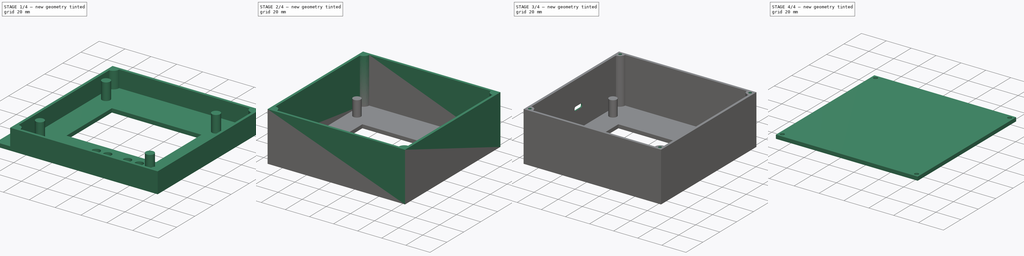
[diagram: build sequence overview — one tinted view per stage of 4, left to right]
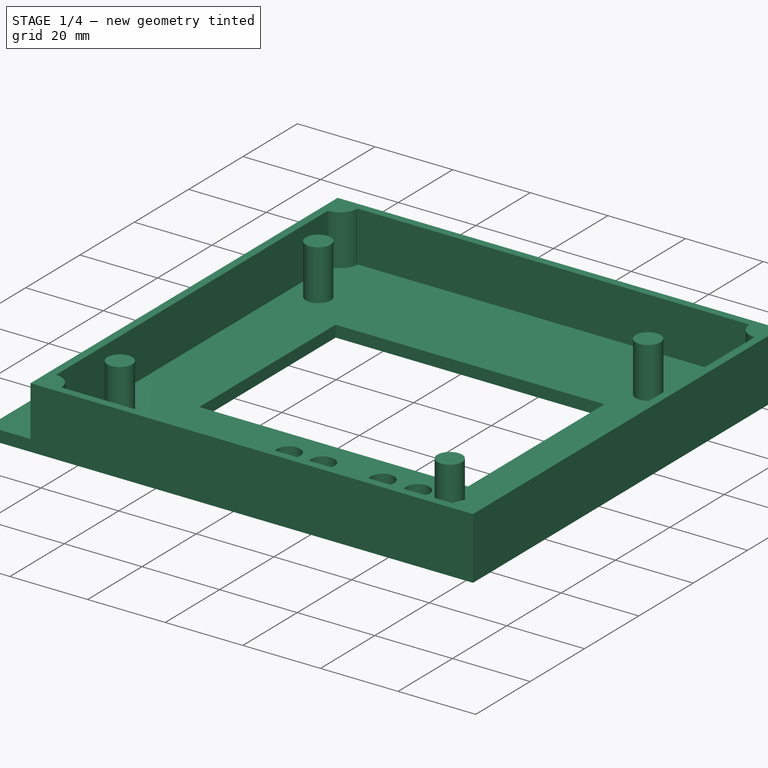
[diagram: stage 1 of 4 — iso view after this stage's code; geometry added in this stage tinted green]
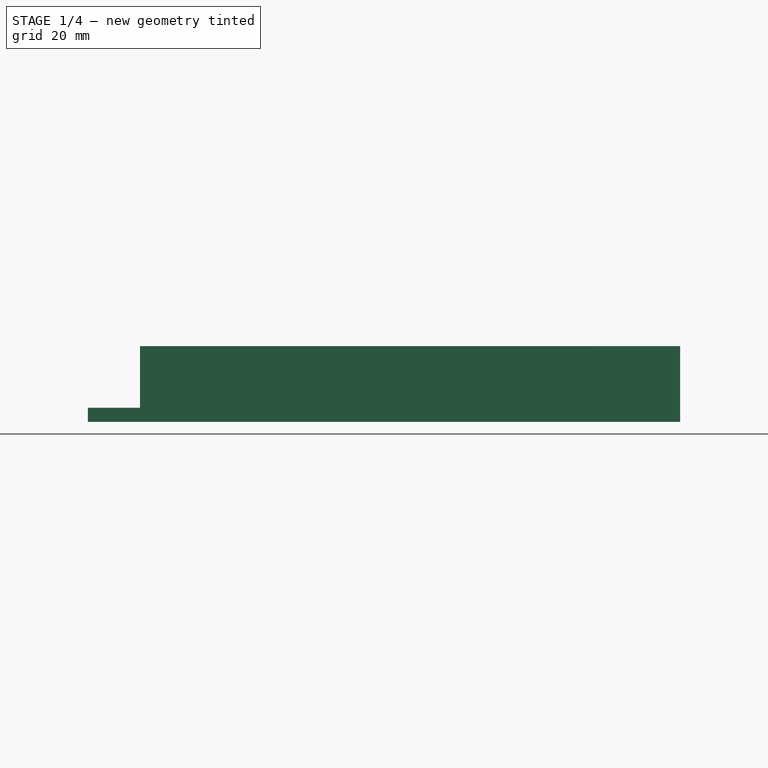
[diagram: stage 1 of 4 — front view after this stage's code; geometry added in this stage tinted green]
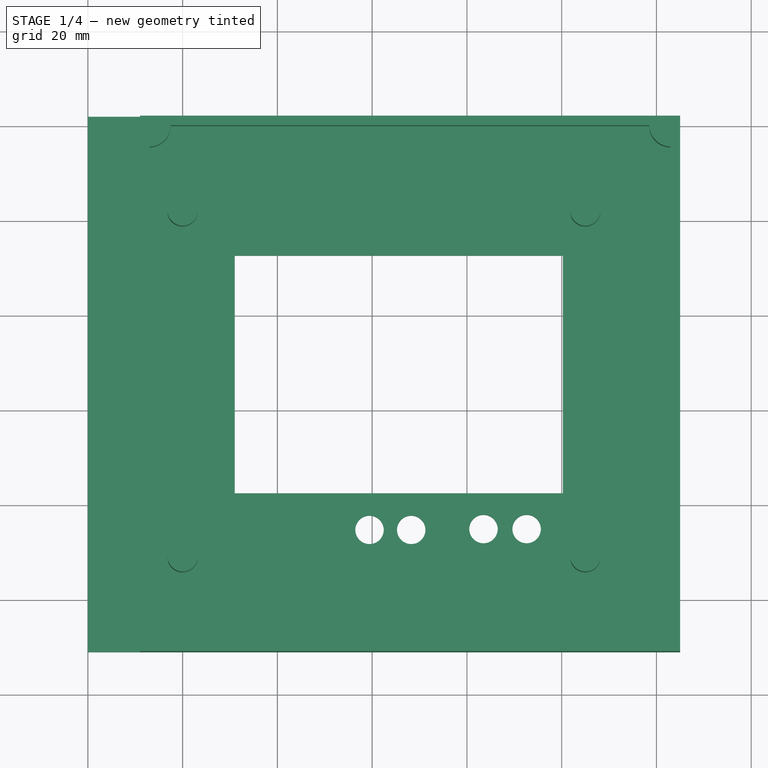
[diagram: stage 1 of 4 — top view after this stage's code; geometry added in this stage tinted green]
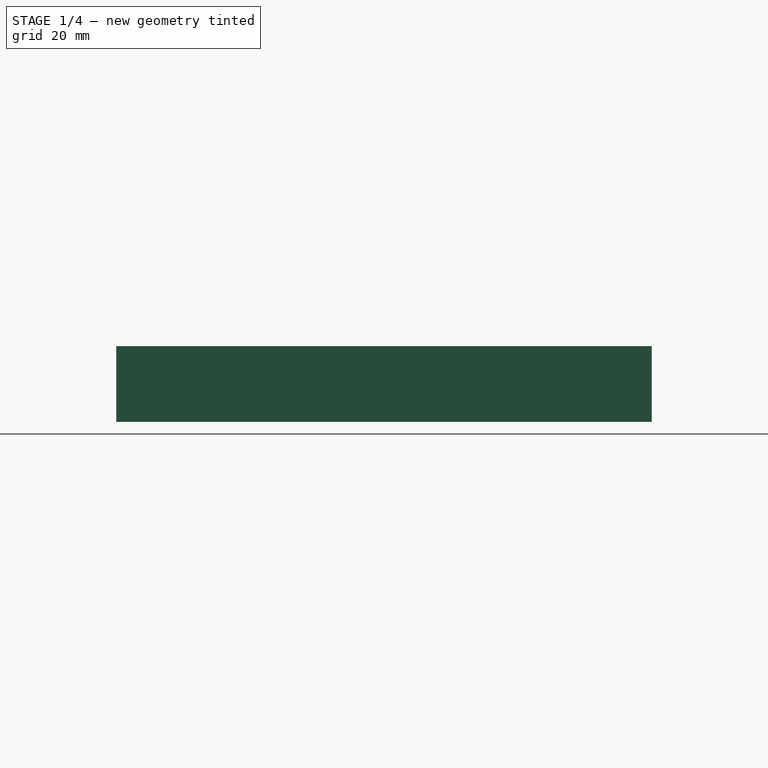
[diagram: stage 1 of 4 — right view after this stage's code; geometry added in this stage tinted green]
FCSTD DOCUMENT  (FreeCAD 1.0R39319 (Git))
Label: obudowa_zewn
License: All rights reserved
LicenseURL: https://en.wikipedia.org/wiki/All_rights_reserved
objects: Sketcher::SketchObject×9, PartDesign::Pad×5, PartDesign::Pocket×5, PartDesign::SubShapeBinder×3, Part::Feature×2, PartDesign::Body×2
note: 55 computed .brp shape members not serialized (recipe doc carries the construction recipe); baked Part::Feature solids carry a one-line shape summary decoded from their .brp

FEATURE [Part::Feature] Feature  label="stacja_pogody_moduł_wew"
  shape: bbox 102.3 x 83.25 x 37.03 mm, 5236 faces, 172 solids (baked)
FEATURE [PartDesign::SubShapeBinder] Binder
  BindCopyOnChange = 0
  BindMode = 0
  ClaimChildren = false
  Context = -> Body [Binder.]
  Fuse = false
  MakeFace = true
  OffsetFill = false
  OffsetIntersection = false
  OffsetJoinType = 0
  OffsetOpenResult = false
  PartialLoad = false
  Refine = true
  Relative = true
  Support = -> [Feature[Face4966,Face5132,Face4211,Face4316,Face4106,Face4001,Face4384,Face4534]]
  _Version = 2
FEATURE [Sketcher::SketchObject] Sketch
  ArcFitTolerance = 1e-06
  AttachmentSupport = -> [Binder]
  ExternalGeometry = -> [Binder]
  FullyConstrained = true
  MakeInternals = false
  MapMode = 5
  Placement = pos=(0,0,0) rot=(1,0,0;3.14159rad)
  sketch-geometry (18):
    g0: LineSegment [constr] StartX=95 StartY=136 StartZ=0 EndX=95 EndY=53 EndZ=0
    g1: LineSegment [constr] StartX=95 StartY=53 StartZ=0 EndX=190 EndY=53 EndZ=0
    g2: LineSegment [constr] StartX=190 StartY=53 StartZ=0 EndX=190 EndY=136 EndZ=0
    g3: LineSegment [constr] StartX=190 StartY=136 StartZ=0 EndX=95 EndY=136 EndZ=0
    g4: LineSegment StartX=111.005 StartY=117.467 StartZ=0 EndX=111.005 EndY=67.3169 EndZ=0
    g5: LineSegment StartX=111.005 StartY=67.3169 StartZ=0 EndX=180.245 EndY=67.3169 EndZ=0
    g6: LineSegment StartX=180.245 StartY=67.3169 StartZ=0 EndX=180.245 EndY=117.467 EndZ=0
    g7: LineSegment StartX=180.245 StartY=117.467 StartZ=0 EndX=111.005 EndY=117.467 EndZ=0
    g8: Circle CenterX=139.446 CenterY=125.195 CenterZ=0 NormalX=0 NormalY=0 NormalZ=1 AngleXU=0 Radius=3
    g9: Circle CenterX=148.246 CenterY=125.195 CenterZ=0 NormalX=0 NormalY=0 NormalZ=1 AngleXU=0 Radius=3
    g10: Circle CenterX=163.5 CenterY=125.025 CenterZ=0 NormalX=0 NormalY=0 NormalZ=1 AngleXU=0 Radius=3
    g11: Circle CenterX=172.6 CenterY=125.025 CenterZ=0 NormalX=0 NormalY=0 NormalZ=1 AngleXU=0 Radius=3
    g12: LineSegment [constr] StartX=95 StartY=136 StartZ=0 EndX=190 EndY=53 EndZ=0
    g13: GeomPoint [constr] X=142.5 Y=94.5 Z=0
    g14: LineSegment StartX=80 StartY=151 StartZ=0 EndX=80 EndY=38 EndZ=0
    g15: LineSegment StartX=80 StartY=38 StartZ=0 EndX=205 EndY=38 EndZ=0
    g16: LineSegment StartX=205 StartY=38 StartZ=0 EndX=205 EndY=151 EndZ=0
    g17: LineSegment StartX=205 StartY=151 StartZ=0 EndX=80 EndY=151 EndZ=0
  constraints (42):
    c: Coincident(g0,g1)
    c: Coincident(g1,g2)
    c: Coincident(g2,g3)
    c: Coincident(g3,g0)
    c: Vertical(g0)
    c: Vertical(g2)
    c: Horizontal(g1)
    c: Horizontal(g3)
    c: Coincident(g0,g-6)
    c: Coincident(g1,g-5)
    c: Coincident(g4,g5)
    c: Coincident(g5,g6)
    c: Coincident(g6,g7)
    c: Coincident(g7,g4)
    c: Vertical(g4)
    c: Vertical(g6)
    c: Horizontal(g5)
    c: Horizontal(g7)
    c: Coincident(g4,g-10)
    c: Coincident(g5,g-9)
    c: Diameter(g8) = 6
    c: Coincident(g8,g-19)
    c: Diameter(g9) = 6
    c: Coincident(g9,g-20)
    c: Diameter(g10) = 6
    c: Coincident(g10,g-21)
    c: Diameter(g11) = 6
    c: Coincident(g11,g-22)
    c: Coincident(g12,g0)
    c: Coincident(g12,g1)
    c: Symmetric(g12,g12,g13)
    c: Coincident(g14,g15)
    c: Coincident(g15,g16)
    c: Coincident(g16,g17)
    c: Coincident(g17,g14)
    c: Vertical(g14)
    c: Vertical(g16)
    c: Horizontal(g15)
    c: Horizontal(g17)
    c: Distance(g14,g16) = 125
    c: Distance(g15,g17) = 113
    c: Symmetric(g14,g15,g13)
FEATURE [PartDesign::Pad] Pad
  Direction = (0,0,-1)
  Length = 3
  Length2 = 10
  Profile = -> Sketch
  ReferenceAxis = -> Sketch [N_Axis]
  Refine = true
  Suppressed = false
  Type = 0
FEATURE [Sketcher::SketchObject] Sketch001
  ArcFitTolerance = 1e-06
  AttachmentSupport = -> [Pad]
  ExternalGeometry = -> [Binder,Pad,Sketch]
  FullyConstrained = false
  MakeInternals = false
  MapMode = 5
  sketch-geometry (21):
    g0: Circle CenterX=100 CenterY=-58 CenterZ=0 NormalX=0 NormalY=0 NormalZ=1 AngleXU=0 Radius=3.2
    g1: Circle CenterX=185 CenterY=-58 CenterZ=0 NormalX=0 NormalY=0 NormalZ=1 AngleXU=0 Radius=3.2
    g2: Circle CenterX=185 CenterY=-131 CenterZ=0 NormalX=0 NormalY=0 NormalZ=1 AngleXU=0 Radius=3.2
    g3: Circle CenterX=100 CenterY=-131 CenterZ=0 NormalX=0 NormalY=0 NormalZ=1 AngleXU=0 Radius=3.2
    g4: LineSegment [constr] StartX=95 StartY=-53 StartZ=0 EndX=95 EndY=-38 EndZ=0
    g5: LineSegment [constr] StartX=95 StartY=-136 StartZ=0 EndX=95 EndY=-151 EndZ=0
    g6: LineSegment [constr] StartX=91 StartY=-151 StartZ=0 EndX=91 EndY=-38 EndZ=0
    g7: LineSegment StartX=91 StartY=-38 StartZ=0 EndX=91 EndY=-151 EndZ=0
    g8: LineSegment StartX=91 StartY=-151 StartZ=0 EndX=205 EndY=-151 EndZ=0
    g9: LineSegment StartX=205 StartY=-151 StartZ=0 EndX=205 EndY=-38 EndZ=0
    g10: LineSegment StartX=205 StartY=-38 StartZ=0 EndX=91 EndY=-38 EndZ=0
    g11: LineSegment StartX=93 StartY=-44.5 StartZ=0 EndX=93 EndY=-144.5 EndZ=0
    g12: LineSegment StartX=97.5 StartY=-149 StartZ=0 EndX=198.5 EndY=-149 EndZ=0
    g13: LineSegment StartX=203 StartY=-144.5 StartZ=0 EndX=203 EndY=-44.5 EndZ=0
    g14: LineSegment StartX=198.5 StartY=-40 StartZ=0 EndX=97.5 EndY=-40 EndZ=0
    g15: LineSegment [constr] StartX=91 StartY=-38 StartZ=0 EndX=205 EndY=-151 EndZ=0
    g16: GeomPoint [constr] X=148 Y=-94.5 Z=0
    g17: ArcOfCircle CenterX=93 CenterY=-40 CenterZ=0 NormalX=0 NormalY=0 NormalZ=1 AngleXU=0 Radius=4.5 StartAngle=4.71239 EndAngle=6.28318
    g18: ArcOfCircle CenterX=203 CenterY=-40 CenterZ=0 NormalX=0 NormalY=0 NormalZ=1 AngleXU=0 Radius=4.5 StartAngle=3.14159 EndAngle=4.71239
    g19: ArcOfCircle CenterX=203 CenterY=-149 CenterZ=0 NormalX=0 NormalY=0 NormalZ=1 AngleXU=0 Radius=4.5 StartAngle=1.5708 EndAngle=3.14159
    g20: ArcOfCircle CenterX=93 CenterY=-149 CenterZ=0 NormalX=0 NormalY=0 NormalZ=1 AngleXU=0 Radius=4.5 StartAngle=1.068e-13 EndAngle=1.5708
  constraints (46):
    c: Diameter(g0) = 6.4
    c: Coincident(g0,g-3)
    c: Diameter(g1) = 6.4
    c: Coincident(g1,g-4)
    c: Diameter(g2) = 6.4
    c: Coincident(g2,g-5)
    c: Diameter(g3) = 6.4
    c: Coincident(g3,g-6)
    c: Coincident(g4,g-7)
    c: PointOnObject(g4,g-8)
    c: Vertical(g4)
    c: Coincident(g5,g-7)
    c: PointOnObject(g5,g-10)
    c: Vertical(g5)
    c: PointOnObject(g6,g-10)
    c: PointOnObject(g6,g-8)
    c: Vertical(g6)
    c: Coincident(g7,g8)
    c: Coincident(g8,g9)
    c: Coincident(g9,g10)
    c: Coincident(g10,g7)
    c: Vertical(g7)
    c: Vertical(g9)
    c: Horizontal(g8)
    c: Horizontal(g10)
    c: Coincident(g7,g6)
    c: Coincident(g8,g-10)
    c: Vertical(g11)
    c: Vertical(g13)
    c: Horizontal(g12)
    c: Horizontal(g14)
    c: Coincident(g15,g6)
    c: Coincident(g15,g8)
    c: Symmetric(g15,g15,g16)
    c: Radius(g17) = 4.5
    c: Radius(g18) = 4.5
    c: Radius(g19) = 4.5
    c: Radius(g20) = 4.5
    c: Coincident(g11,g20)
    c: Coincident(g12,g20)
    c: Coincident(g14,g17)
    c: Coincident(g11,g17)
    c: Coincident(g13,g18)
    c: Coincident(g14,g18)
    c: Coincident(g13,g19)
    c: Coincident(g12,g19)
FEATURE [Part::Feature] Feature001  label="stacja_pogody_moduł_wew001"
  Placement = pos=(0,0,13) rot=(0,0,1;0rad)
  shape: bbox 102.3 x 83.25 x 37.03 mm, 5236 faces, 172 solids (baked)
FEATURE [PartDesign::SubShapeBinder] Binder001
  BindCopyOnChange = 0
  BindMode = 0
  ClaimChildren = false
  Context = -> Body [Binder001.]
  Fuse = false
  MakeFace = true
  OffsetFill = false
  OffsetIntersection = false
  OffsetJoinType = 0
  OffsetOpenResult = false
  PartialLoad = false
  Refine = true
  Relative = true
  Support = -> [Feature001[Face2033,Face2356]]
  _Version = 2
FEATURE [PartDesign::Pad] Pad001
  BaseFeature = -> Pad
  Direction = (0,0,1)
  Length = 13
  Length2 = 10
  Profile = -> Sketch001
  ReferenceAxis = -> Sketch001 [N_Axis]
  Refine = true
  Suppressed = false
  Type = 0
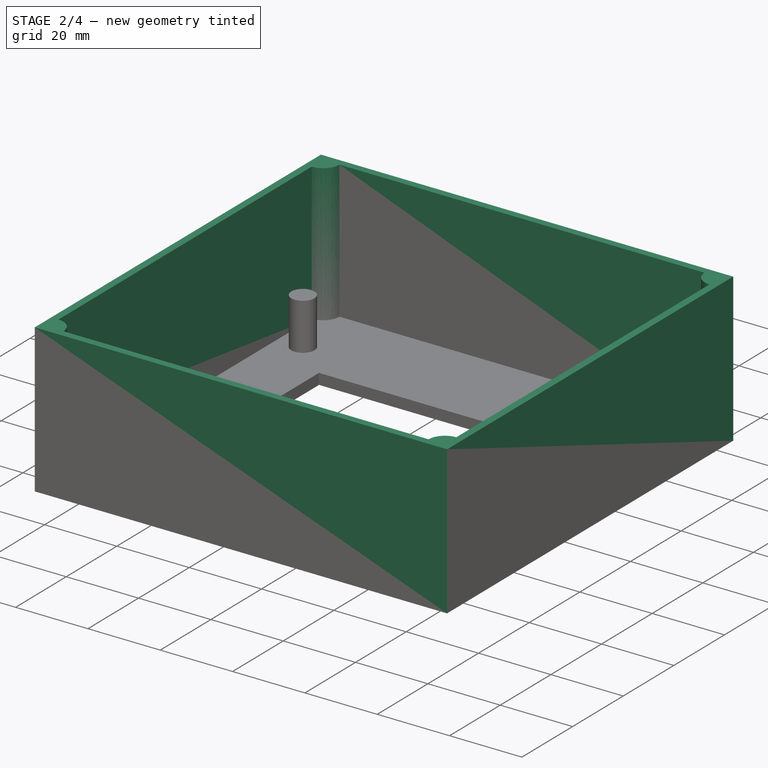
[diagram: stage 2 of 4 — iso view after this stage's code; geometry added in this stage tinted green]
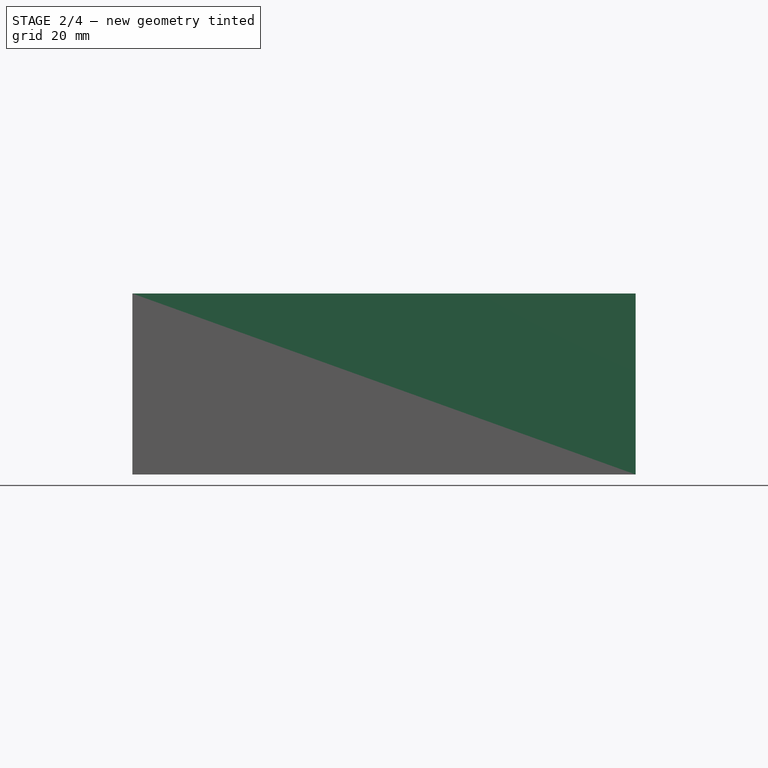
[diagram: stage 2 of 4 — front view after this stage's code; geometry added in this stage tinted green]
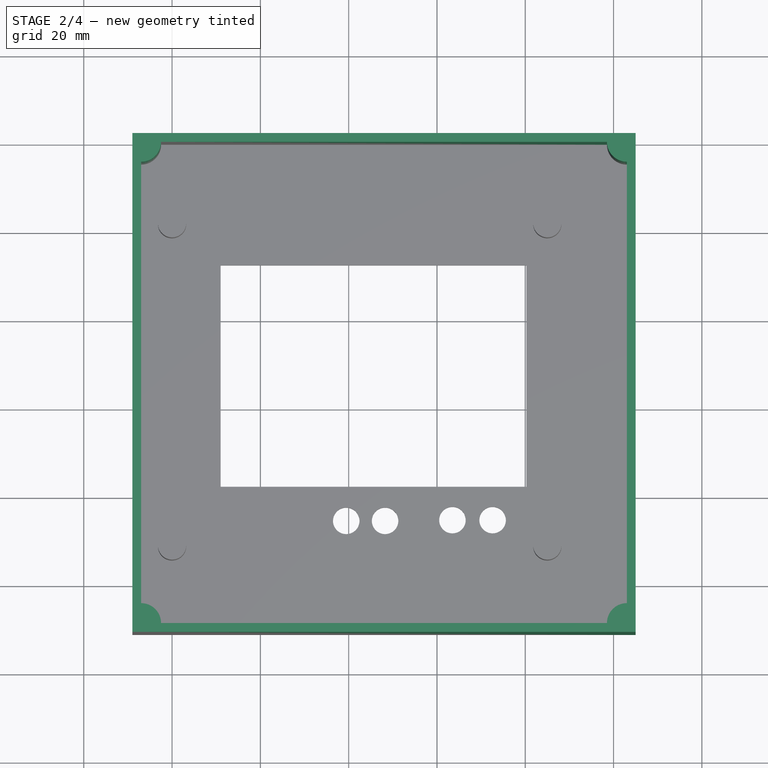
[diagram: stage 2 of 4 — top view after this stage's code; geometry added in this stage tinted green]
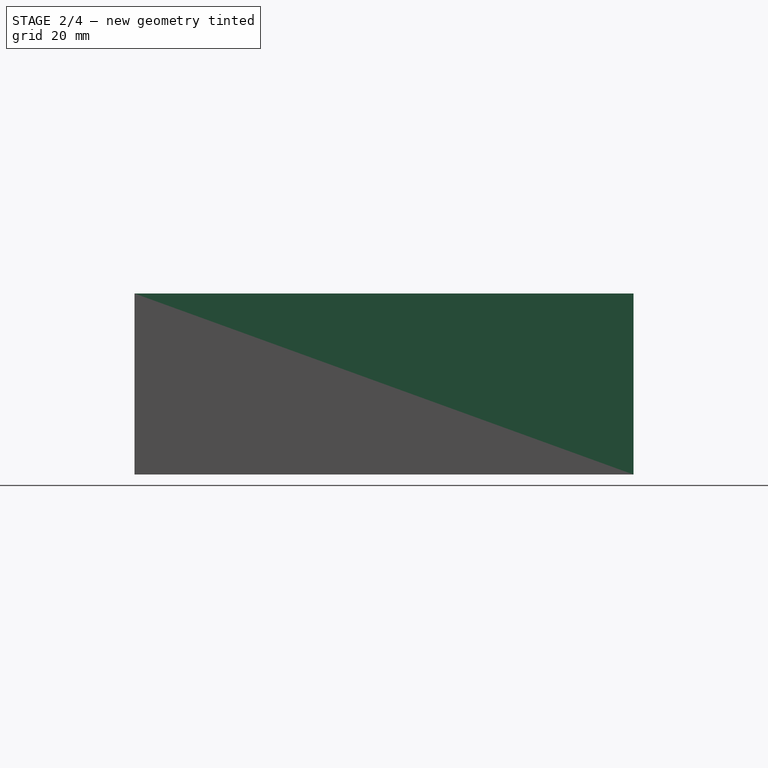
[diagram: stage 2 of 4 — right view after this stage's code; geometry added in this stage tinted green]
FEATURE [Sketcher::SketchObject] Sketch002
  ArcFitTolerance = 1e-06
  AttachmentSupport = -> [Pad001]
  ExternalGeometry = -> [Sketch,Pad001]
  FullyConstrained = true
  MakeInternals = false
  MapMode = 5
  sketch-geometry (4):
    g0: LineSegment StartX=80 StartY=-38 StartZ=0 EndX=80 EndY=-151 EndZ=0
    g1: LineSegment StartX=80 StartY=-151 StartZ=0 EndX=91 EndY=-151 EndZ=0
    g2: LineSegment StartX=91 StartY=-151 StartZ=0 EndX=91 EndY=-38 EndZ=0
    g3: LineSegment StartX=91 StartY=-38 StartZ=0 EndX=80 EndY=-38 EndZ=0
  constraints (10):
    c: Coincident(g0,g1)
    c: Coincident(g1,g2)
    c: Coincident(g2,g3)
    c: Coincident(g3,g0)
    c: Vertical(g0)
    c: Vertical(g2)
    c: Horizontal(g1)
    c: Horizontal(g3)
    c: Coincident(g0,g-4)
    c: Coincident(g1,g-5)
FEATURE [PartDesign::Pocket] Pocket
  BaseFeature = -> Pad001
  Direction = (0,0,-1)
  Length = 5
  Length2 = 5
  Profile = -> Sketch002
  ReferenceAxis = -> Sketch002 [N_Axis]
  Refine = true
  Suppressed = false
  Type = 0
FEATURE [Sketcher::SketchObject] Sketch003
  ArcFitTolerance = 1e-06
  AttachmentSupport = -> [Pocket]
  ExternalGeometry = -> [Pocket]
  FullyConstrained = false
  MakeInternals = false
  MapMode = 5
  Placement = pos=(0,0,13) rot=(0,0,1;0rad)
  sketch-geometry (12):
    g0: LineSegment StartX=91 StartY=-38 StartZ=0 EndX=91 EndY=-151 EndZ=0
    g1: LineSegment StartX=91 StartY=-151 StartZ=0 EndX=205 EndY=-151 EndZ=0
    g2: LineSegment StartX=205 StartY=-151 StartZ=0 EndX=205 EndY=-38 EndZ=0
    g3: LineSegment StartX=205 StartY=-38 StartZ=0 EndX=91 EndY=-38 EndZ=0
    g4: LineSegment StartX=93 StartY=-44.5 StartZ=0 EndX=93 EndY=-144.5 EndZ=0
    g5: LineSegment StartX=97.5 StartY=-149 StartZ=0 EndX=198.5 EndY=-149 EndZ=0
    g6: LineSegment StartX=203 StartY=-144.5 StartZ=0 EndX=203 EndY=-44.5 EndZ=0
    g7: LineSegment StartX=198.5 StartY=-40 StartZ=0 EndX=97.5 EndY=-40 EndZ=0
    g8: ArcOfCircle CenterX=93 CenterY=-149 CenterZ=0 NormalX=0 NormalY=0 NormalZ=1 AngleXU=0 Radius=4.5 StartAngle=6.28318 EndAngle=7.85398
    g9: ArcOfCircle CenterX=93 CenterY=-40 CenterZ=0 NormalX=0 NormalY=0 NormalZ=1 AngleXU=0 Radius=4.5 StartAngle=4.71239 EndAngle=6.28318
    g10: ArcOfCircle CenterX=203 CenterY=-40 CenterZ=0 NormalX=0 NormalY=0 NormalZ=1 AngleXU=0 Radius=4.5 StartAngle=3.14159 EndAngle=4.71239
    g11: ArcOfCircle CenterX=203 CenterY=-149 CenterZ=0 NormalX=0 NormalY=0 NormalZ=1 AngleXU=0 Radius=4.5 StartAngle=1.5708 EndAngle=3.14159
  constraints (26):
    c: Coincident(g0,g1)
    c: Coincident(g1,g2)
    c: Coincident(g2,g3)
    c: Coincident(g3,g0)
    c: Vertical(g0)
    c: Vertical(g2)
    c: Horizontal(g1)
    c: Horizontal(g3)
    c: Coincident(g0,g-6)
    c: Coincident(g1,g-5)
    c: Vertical(g4)
    c: Vertical(g6)
    c: Horizontal(g5)
    c: Horizontal(g7)
    c: Radius(g8) = 4.5
    c: Radius(g9) = 4.5
    c: Radius(g10) = 4.5
    c: Radius(g11) = 4.5
    c: Coincident(g7,g9)
    c: Coincident(g4,g9)
    c: Coincident(g7,g10)
    c: Coincident(g6,g10)
    c: Coincident(g5,g11)
    c: Coincident(g6,g11)
    c: Coincident(g5,g8)
    c: Coincident(g4,g8)
FEATURE [PartDesign::Pad] Pad002
  BaseFeature = -> Pocket
  Direction = (0,0,1)
  Length = 25
  Length2 = 10
  Profile = -> Sketch003
  ReferenceAxis = -> Sketch003 [N_Axis]
  Refine = true
  Suppressed = false
  Type = 0
FEATURE [Sketcher::SketchObject] Sketch004
  ArcFitTolerance = 1e-06
  AttachmentSupport = -> [Pad002]
  ExternalGeometry = -> [Binder001]
  FullyConstrained = false
  MakeInternals = false
  MapMode = 5
  Placement = pos=(91,0,0) rot=(0.57735,-0.57735,-0.57735;2.0944rad)
  sketch-geometry (8):
    g0: ArcOfCircle CenterX=85.81 CenterY=16.625 CenterZ=0 NormalX=0 NormalY=0 NormalZ=1 AngleXU=0 Radius=1.28 StartAngle=1.5708 EndAngle=3.14159
    g1: ArcOfCircle CenterX=92.19 CenterY=16.625 CenterZ=0 NormalX=0 NormalY=0 NormalZ=1 AngleXU=0 Radius=1.28 StartAngle=0 EndAngle=1.5708
    g2: ArcOfCircle CenterX=92.19 CenterY=16.025 CenterZ=0 NormalX=0 NormalY=0 NormalZ=1 AngleXU=0 Radius=1.28 StartAngle=4.71239 EndAngle=6.28319
    g3: ArcOfCircle CenterX=85.81 CenterY=16.025 CenterZ=0 NormalX=0 NormalY=0 NormalZ=1 AngleXU=0 Radius=1.28 StartAngle=3.14159 EndAngle=4.71239
    g4: LineSegment StartX=85.81 StartY=17.905 StartZ=0 EndX=92.19 EndY=17.905 EndZ=0
    g5: LineSegment StartX=92.19 StartY=14.745 StartZ=0 EndX=85.81 EndY=14.745 EndZ=0
    g6: LineSegment StartX=84.53 StartY=16.025 StartZ=0 EndX=84.53 EndY=16.625 EndZ=0
    g7: LineSegment StartX=93.47 StartY=16.025 StartZ=0 EndX=93.47 EndY=16.625 EndZ=0
  constraints (16):
    c: Coincident(g0,g-11)
    c: Coincident(g0,g-11)
    c: Coincident(g1,g-5)
    c: Coincident(g1,g-12)
    c: Coincident(g2,g-6)
    c: Coincident(g2,g-12)
    c: Coincident(g3,g-9)
    c: Coincident(g3,g-9)
    c: Coincident(g3,g-10)
    c: Coincident(g4,g0)
    c: Coincident(g4,g1)
    c: Horizontal(g4)
    c: Coincident(g6,g3)
    c: Coincident(g6,g0)
    c: Coincident(g7,g2)
    c: Coincident(g7,g1)
FEATURE [PartDesign::Pad] Pad003
  BaseFeature = -> Pad002
  Direction = (0,0,1)
  Length = 25
  Length2 = 10
  Profile = -> Sketch003
  ReferenceAxis = -> Sketch003 [N_Axis]
  Refine = true
  Suppressed = false
  Type = 0
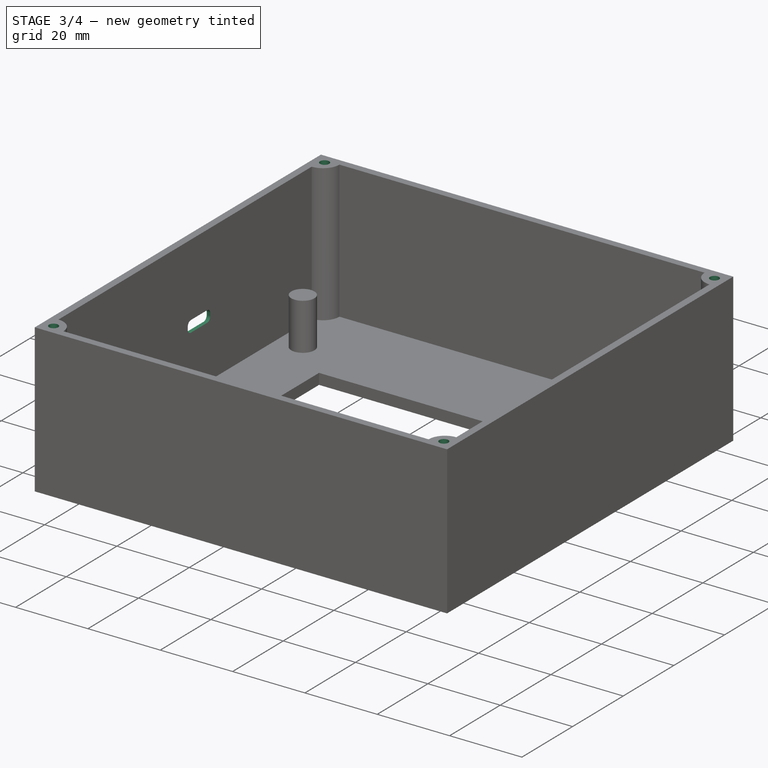
[diagram: stage 3 of 4 — iso view after this stage's code; geometry added in this stage tinted green]
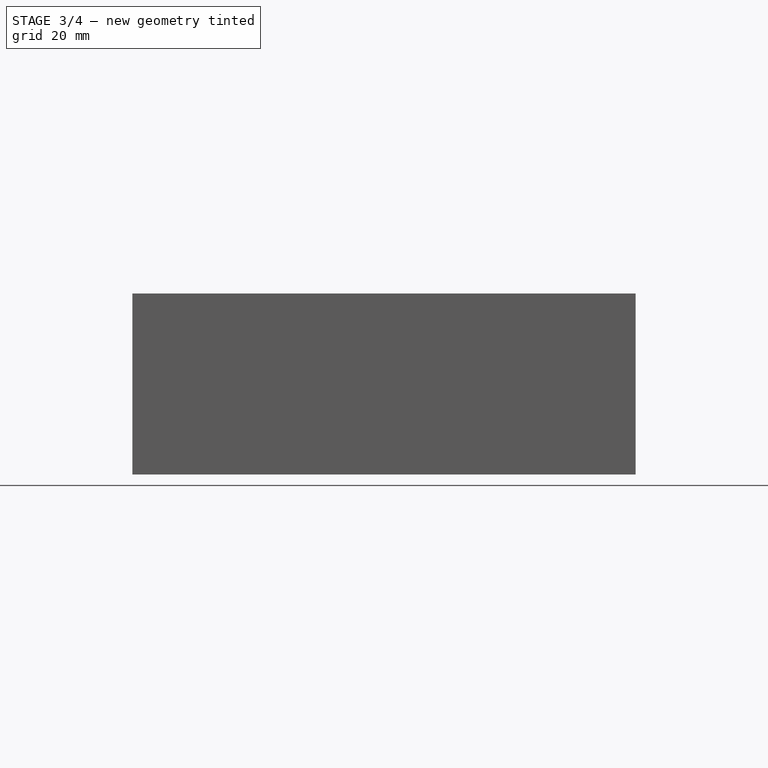
[diagram: stage 3 of 4 — front view after this stage's code; geometry added in this stage tinted green]
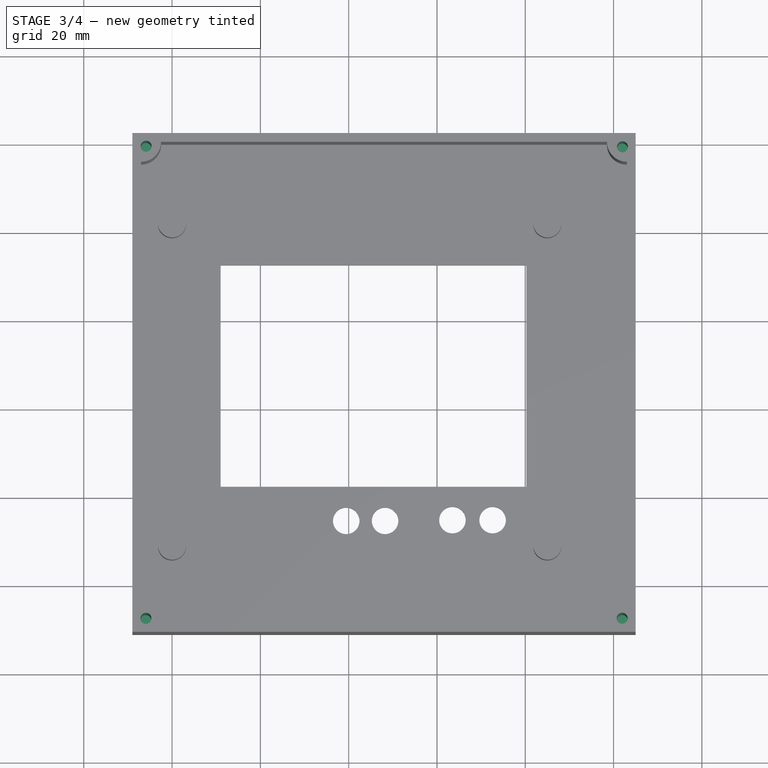
[diagram: stage 3 of 4 — top view after this stage's code; geometry added in this stage tinted green]
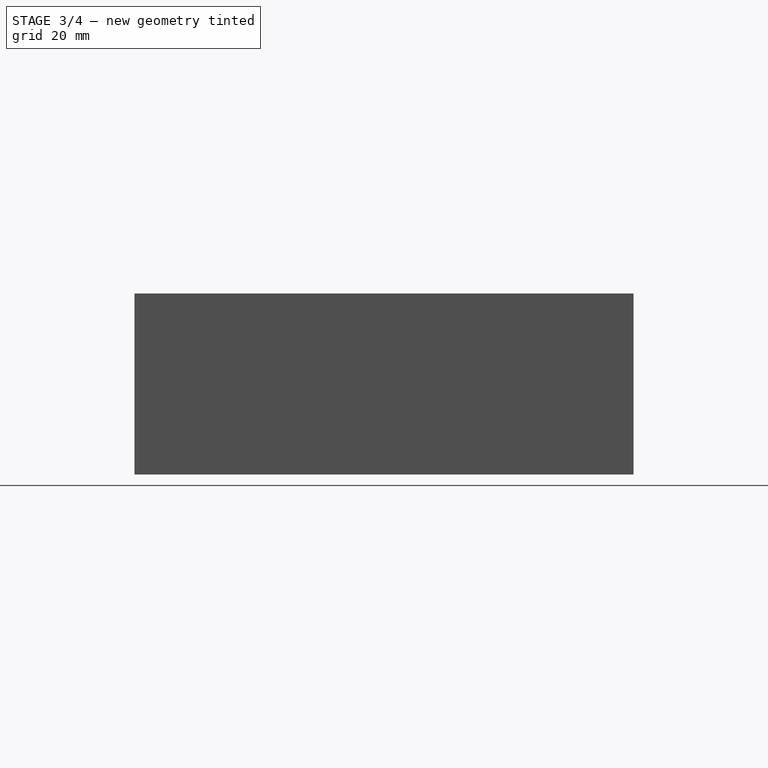
[diagram: stage 3 of 4 — right view after this stage's code; geometry added in this stage tinted green]
FEATURE [PartDesign::Pocket] Pocket001
  BaseFeature = -> Pad003
  Direction = (1,0,0)
  Length = 5
  Length2 = 5
  Profile = -> Sketch004
  ReferenceAxis = -> Sketch004 [N_Axis]
  Refine = true
  Suppressed = false
  Type = 0
FEATURE [Sketcher::SketchObject] Sketch005
  ArcFitTolerance = 1e-06
  AttachmentSupport = -> [Pocket001]
  ExternalGeometry = -> [Pocket001]
  FullyConstrained = false
  MakeInternals = false
  MapMode = 5
  Placement = pos=(91,0,0) rot=(0.57735,-0.57735,-0.57735;2.0944rad)
  sketch-geometry (20):
    g0: LineSegment [constr] StartX=85.81 StartY=16.625 StartZ=0 EndX=92.19 EndY=16.025 EndZ=0
    g1: GeomPoint X=89 Y=16.325 Z=0
    g2: LineSegment [constr] StartX=89 StartY=16.325 StartZ=0 EndX=89 EndY=17.905 EndZ=0
    g3: LineSegment [constr] StartX=89 StartY=17.905 StartZ=0 EndX=89 EndY=19.405 EndZ=0
    g4: LineSegment [constr] StartX=89 StartY=16.325 StartZ=0 EndX=89 EndY=14.745 EndZ=0
    g5: LineSegment [constr] StartX=89 StartY=14.745 StartZ=0 EndX=89 EndY=13.245 EndZ=0
    g6: LineSegment [constr] StartX=89 StartY=16.325 StartZ=0 EndX=84.53 EndY=16.325 EndZ=0
    g7: LineSegment [constr] StartX=89 StartY=16.325 StartZ=0 EndX=93.47 EndY=16.325 EndZ=0
    g8: LineSegment [constr] StartX=84.53 StartY=16.325 StartZ=0 EndX=83.03 EndY=16.325 EndZ=0
    g9: LineSegment [constr] StartX=93.47 StartY=16.325 StartZ=0 EndX=94.97 EndY=16.325 EndZ=0
    g10: LineSegment StartX=83.0213 StartY=17.905 StartZ=0 EndX=83.0213 EndY=14.745 EndZ=0
    g11: LineSegment StartX=84.5213 StartY=13.245 StartZ=0 EndX=93.4787 EndY=13.245 EndZ=0
    g12: LineSegment StartX=94.9787 StartY=14.745 StartZ=0 EndX=94.9787 EndY=17.905 EndZ=0
    g13: LineSegment StartX=93.4787 StartY=19.405 StartZ=0 EndX=84.5213 EndY=19.405 EndZ=0
    g14: ArcOfCircle CenterX=84.5213 CenterY=17.905 CenterZ=0 NormalX=0 NormalY=0 NormalZ=1 AngleXU=0 Radius=1.5 StartAngle=1.5708 EndAngle=3.14159
    g15: ArcOfCircle CenterX=84.5213 CenterY=14.745 CenterZ=0 NormalX=0 NormalY=0 NormalZ=1 AngleXU=0 Radius=1.5 StartAngle=3.14159 EndAngle=4.71239
    g16: ArcOfCircle CenterX=93.4787 CenterY=14.745 CenterZ=0 NormalX=0 NormalY=0 NormalZ=1 AngleXU=0 Radius=1.5 StartAngle=4.71239 EndAngle=6.28319
    g17: ArcOfCircle CenterX=93.4787 CenterY=17.905 CenterZ=0 NormalX=0 NormalY=0 NormalZ=1 AngleXU=0 Radius=1.5 StartAngle=0 EndAngle=1.5708
    g18: GeomPoint [constr] X=83.0213 Y=19.405 Z=0
    g19: GeomPoint [constr] X=94.9787 Y=13.245 Z=0
  constraints (41):
    c: Coincident(g0,g-9)
    c: Coincident(g0,g-6)
    c: Symmetric(g0,g0,g1)
    c: Coincident(g2,g1)
    c: Symmetric(g-3,g-3,g2)
    c: Coincident(g3,g2)
    c: Vertical(g3)
    c: Coincident(g4,g1)
    c: Symmetric(g-7,g-7,g4)
    c: Coincident(g5,g4)
    c: Vertical(g5)
    c: Coincident(g6,g1)
    c: Symmetric(g-10,g-10,g6)
    c: Coincident(g7,g1)
    c: Symmetric(g-5,g-5,g7)
    c: Distance(g8) = 1.5
    c: Coincident(g8,g6)
    c: Horizontal(g8)
    c: Distance(g9) = 1.5
    c: Coincident(g9,g7)
    c: Horizontal(g9)
    c: Tangent(g10,g14) = -1.5708
    c: Tangent(g10,g15) = -1.5708
    c: Tangent(g11,g15) = -1.5708
    c: Tangent(g11,g16) = -1.5708
    c: Tangent(g12,g16) = -1.5708
    c: Tangent(g12,g17) = -1.5708
    c: Tangent(g13,g17) = -1.5708
    c: Tangent(g13,g14) = -1.5708
    c: Vertical(g10)
    c: Vertical(g12)
    c: Horizontal(g11)
    c: Horizontal(g13)
    c: Equal(g14,g15)
    c: Equal(g15,g16)
    c: Equal(g16,g17)
    c: PointOnObject(g18,g10)
    c: PointOnObject(g18,g13)
    c: PointOnObject(g19,g11)
    c: PointOnObject(g19,g12)
    c: Radius(g15) = 1.5
FEATURE [PartDesign::Pocket] Pocket002
  BaseFeature = -> Pocket001
  Direction = (1,0,0)
  Length = 1
  Length2 = 5
  Profile = -> Sketch005
  ReferenceAxis = -> Sketch005 [N_Axis]
  Refine = true
  Suppressed = false
  Type = 0
FEATURE [Sketcher::SketchObject] Sketch007
  ArcFitTolerance = 1e-06
  AttachmentSupport = -> [Pocket002]
  ExternalGeometry = -> [Pocket002]
  FullyConstrained = false
  MakeInternals = false
  MapMode = 5
  Placement = pos=(0,0,38) rot=(0,0,1;0rad)
  sketch-geometry (12):
    g0: LineSegment [constr] StartX=91 StartY=-38 StartZ=0 EndX=96.2793 EndY=-43.0815 EndZ=0
    g1: GeomPoint X=94.1179 Y=-41.0011 Z=0
    g2: Circle CenterX=94.1179 CenterY=-41.0011 CenterZ=0 NormalX=0 NormalY=0 NormalZ=1 AngleXU=0 Radius=1.25
    g3: LineSegment [constr] StartX=205 StartY=-38 StartZ=0 EndX=199.938 EndY=-43.2978 EndZ=0
    g4: GeomPoint X=202.011 Y=-41.1287 Z=0
    g5: Circle CenterX=202.011 CenterY=-41.1287 CenterZ=0 NormalX=0 NormalY=0 NormalZ=1 AngleXU=0 Radius=1.25
    g6: LineSegment [constr] StartX=205 StartY=-151 StartZ=0 EndX=199.842 EndY=-145.794 EndZ=0
    g7: GeomPoint X=201.953 Y=-147.925 Z=0
    g8: Circle CenterX=201.953 CenterY=-147.925 CenterZ=0 NormalX=0 NormalY=0 NormalZ=1 AngleXU=0 Radius=1.25
    g9: LineSegment [constr] StartX=91 StartY=-151 StartZ=0 EndX=96.194 EndY=-145.83 EndZ=0
    g10: GeomPoint X=94.0677 Y=-147.946 Z=0
    g11: Circle CenterX=94.0677 CenterY=-147.946 CenterZ=0 NormalX=0 NormalY=0 NormalZ=1 AngleXU=0 Radius=1.25
  constraints (24):
    c: Coincident(g0,g-4)
    c: PointOnObject(g0,g-3)
    c: PointOnObject(g1,g0)
    c: Distance(g1,g0) = 3
    c: Diameter(g2) = 2.5
    c: Coincident(g2,g1)
    c: Coincident(g3,g-6)
    c: PointOnObject(g3,g-5)
    c: PointOnObject(g4,g3)
    c: Distance(g4,g3) = 3
    c: Diameter(g5) = 2.5
    c: Coincident(g5,g4)
    c: Coincident(g6,g-8)
    c: PointOnObject(g6,g-7)
    c: PointOnObject(g7,g6)
    c: Distance(g6,g7) = 3
    c: Diameter(g8) = 2.5
    c: Coincident(g8,g7)
    c: Coincident(g9,g-9)
    c: PointOnObject(g9,g-10)
    c: PointOnObject(g10,g9)
    c: Distance(g10,g9) = 3
    c: Diameter(g11) = 2.5
    c: Coincident(g11,g10)
FEATURE [PartDesign::Pocket] Pocket003
  BaseFeature = -> Pocket002
  Direction = (0,0,-1)
  Length = 30
  Length2 = 5
  Profile = -> Sketch007
  ReferenceAxis = -> Sketch007 [N_Axis]
  Refine = true
  Suppressed = false
  Type = 0
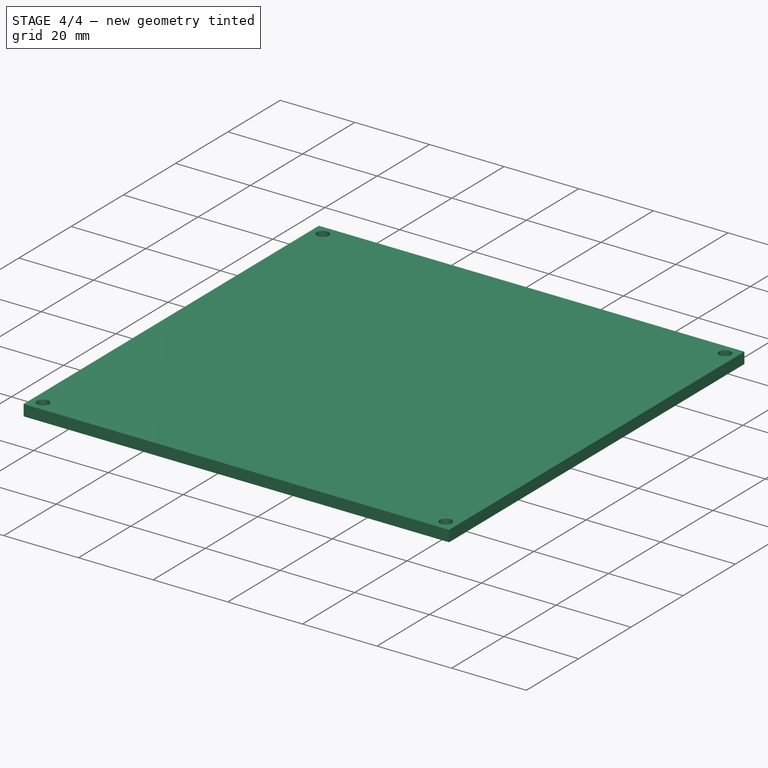
[diagram: stage 4 of 4 — iso view after this stage's code; geometry added in this stage tinted green]
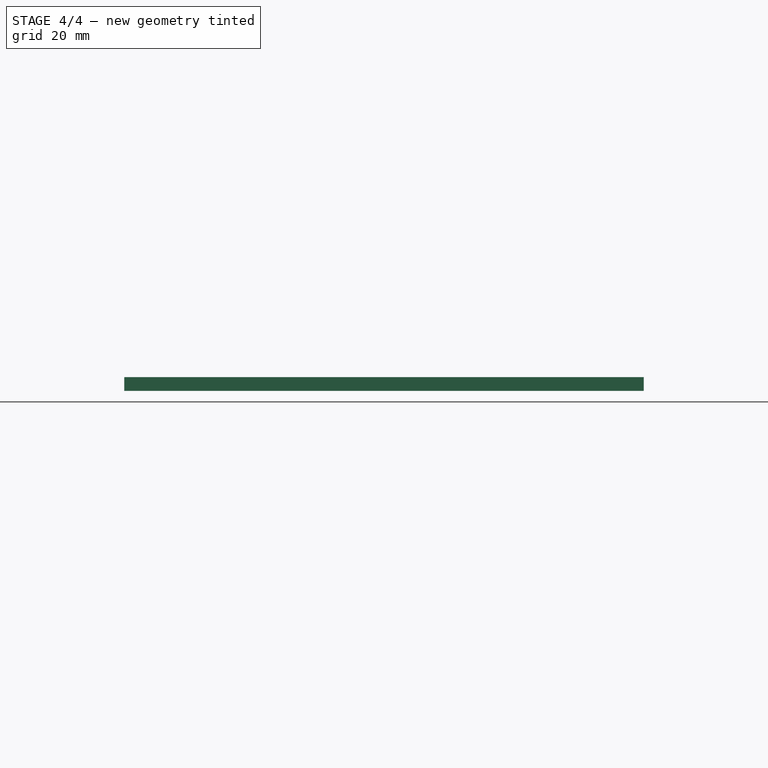
[diagram: stage 4 of 4 — front view after this stage's code; geometry added in this stage tinted green]
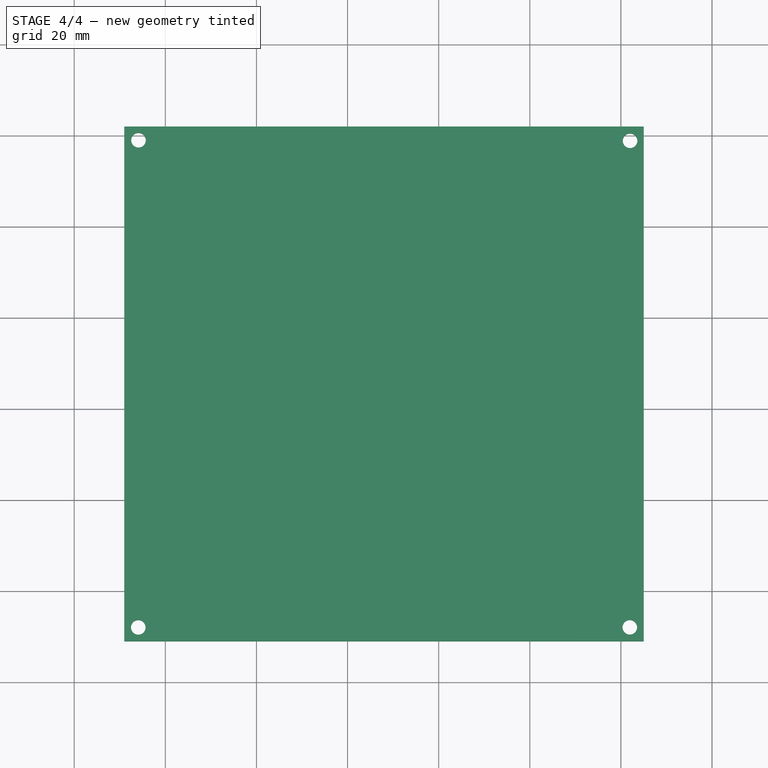
[diagram: stage 4 of 4 — top view after this stage's code; geometry added in this stage tinted green]
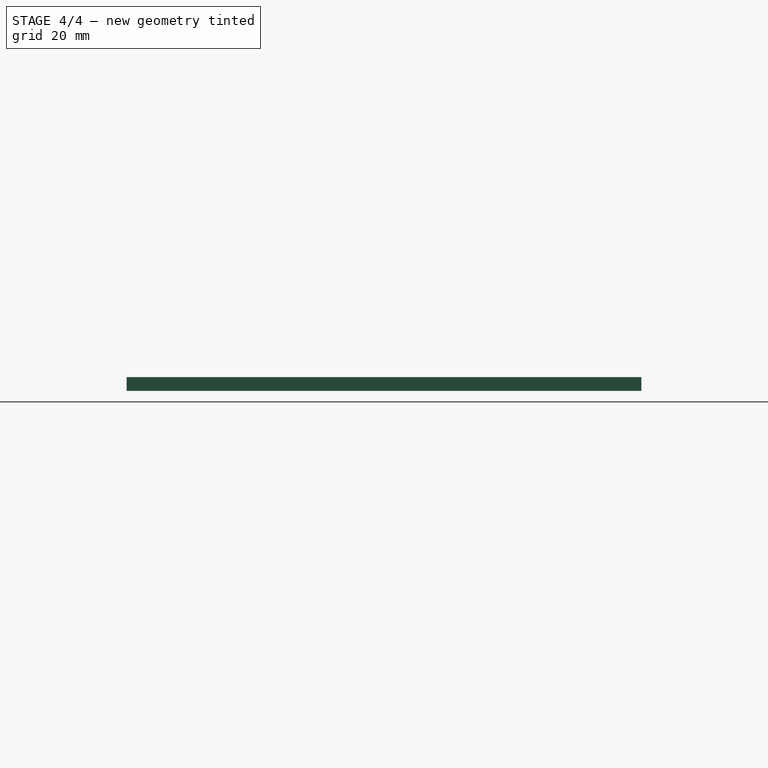
[diagram: stage 4 of 4 — right view after this stage's code; geometry added in this stage tinted green]
FEATURE [PartDesign::SubShapeBinder] Binder002
  BindCopyOnChange = 0
  BindMode = 0
  ClaimChildren = false
  Context = -> Body001 [Binder002.]
  Fuse = false
  MakeFace = true
  OffsetFill = false
  OffsetIntersection = false
  OffsetJoinType = 0
  OffsetOpenResult = false
  PartialLoad = false
  Refine = true
  Relative = true
  Support = -> [Body[Pocket003.]]
  _Version = 2
FEATURE [Sketcher::SketchObject] Sketch008
  ArcFitTolerance = 1e-06
  AttachmentSupport = -> [Binder002]
  ExternalGeometry = -> [Binder002]
  FullyConstrained = true
  MakeInternals = false
  MapMode = 5
  Placement = pos=(0,0,38) rot=(0,0,1;0rad)
  sketch-geometry (8):
    g0: Circle CenterX=94.1179 CenterY=-41.0011 CenterZ=0 NormalX=0 NormalY=0 NormalZ=1 AngleXU=0 Radius=1.6
    g1: Circle CenterX=202.011 CenterY=-41.1287 CenterZ=0 NormalX=0 NormalY=0 NormalZ=1 AngleXU=0 Radius=1.6
    g2: Circle CenterX=201.953 CenterY=-147.925 CenterZ=0 NormalX=0 NormalY=0 NormalZ=1 AngleXU=0 Radius=1.6
    g3: Circle CenterX=94.0677 CenterY=-147.946 CenterZ=0 NormalX=0 NormalY=0 NormalZ=1 AngleXU=0 Radius=1.6
    g4: LineSegment StartX=91 StartY=-38 StartZ=0 EndX=91 EndY=-151 EndZ=0
    g5: LineSegment StartX=91 StartY=-151 StartZ=0 EndX=205 EndY=-151 EndZ=0
    g6: LineSegment StartX=205 StartY=-151 StartZ=0 EndX=205 EndY=-38 EndZ=0
    g7: LineSegment StartX=205 StartY=-38 StartZ=0 EndX=91 EndY=-38 EndZ=0
  constraints (18):
    c: Diameter(g0) = 3.2
    c: Coincident(g0,g-3)
    c: Diameter(g1) = 3.2
    c: Coincident(g1,g-7)
    c: Diameter(g2) = 3.2
    c: Coincident(g2,g-9)
    c: Diameter(g3) = 3.2
    c: Coincident(g3,g-12)
    c: Coincident(g4,g5)
    c: Coincident(g5,g6)
    c: Coincident(g6,g7)
    c: Coincident(g7,g4)
    c: Vertical(g4)
    c: Vertical(g6)
    c: Horizontal(g5)
    c: Horizontal(g7)
    c: Coincident(g4,g-18)
    c: Coincident(g5,g-17)
FEATURE [PartDesign::Pad] Pad004
  Direction = (0,0,1)
  Length = 3
  Length2 = 10
  Profile = -> Sketch008
  ReferenceAxis = -> Sketch008 [N_Axis]
  Refine = true
  Suppressed = false
  Type = 0
FEATURE [PartDesign::Body] Body001  label="wieczko"
  AllowCompound = false
  Group = -> [Binder002,Sketch008,Pad004]
  Origin = -> Origin001
  Tip = -> Pad004
FEATURE [Sketcher::SketchObject] Sketch009
  ArcFitTolerance = 1e-06
  AttachmentSupport = -> [Pocket003]
  ExternalGeometry = -> [Pocket003]
  FullyConstrained = true
  MakeInternals = false
  MapMode = 5
  Placement = pos=(0,0,13) rot=(0,0,1;0rad)
  sketch-geometry (4):
    g0: Circle CenterX=100 CenterY=-58 CenterZ=0 NormalX=0 NormalY=0 NormalZ=1 AngleXU=0 Radius=1.25
    g1: Circle CenterX=185 CenterY=-58 CenterZ=0 NormalX=0 NormalY=0 NormalZ=1 AngleXU=0 Radius=1.25
    g2: Circle CenterX=185 CenterY=-131 CenterZ=0 NormalX=0 NormalY=0 NormalZ=1 AngleXU=0 Radius=1.25
    g3: Circle CenterX=100 CenterY=-131 CenterZ=0 NormalX=0 NormalY=0 NormalZ=1 AngleXU=0 Radius=1.25
  constraints (8):
    c: Diameter(g0) = 2.5
    c: Coincident(g0,g-3)
    c: Diameter(g1) = 2.5
    c: Coincident(g1,g-4)
    c: Diameter(g2) = 2.5
    c: Coincident(g2,g-5)
    c: Diameter(g3) = 2.5
    c: Coincident(g3,g-6)
FEATURE [PartDesign::Pocket] Pocket004
  BaseFeature = -> Pocket003
  Direction = (0,0,-1)
  Length = 13
  Length2 = 5
  Profile = -> Sketch009
  ReferenceAxis = -> Sketch009 [N_Axis]
  Refine = true
  Suppressed = false
  Type = 0
FEATURE [PartDesign::Body] Body  label="Zawartość"
  AllowCompound = false
  Group = -> [Binder,Sketch,Pad,Sketch001,Pad001,Sketch002,Pocket,Sketch003,Pad002,Binder001,Sketch004,Pad003,Pocket001,Sketch005,Pocket002,Sketch007,Pocket003,Sketch009,Pocket004]
  Origin = -> Origin
  Tip = -> Pocket004
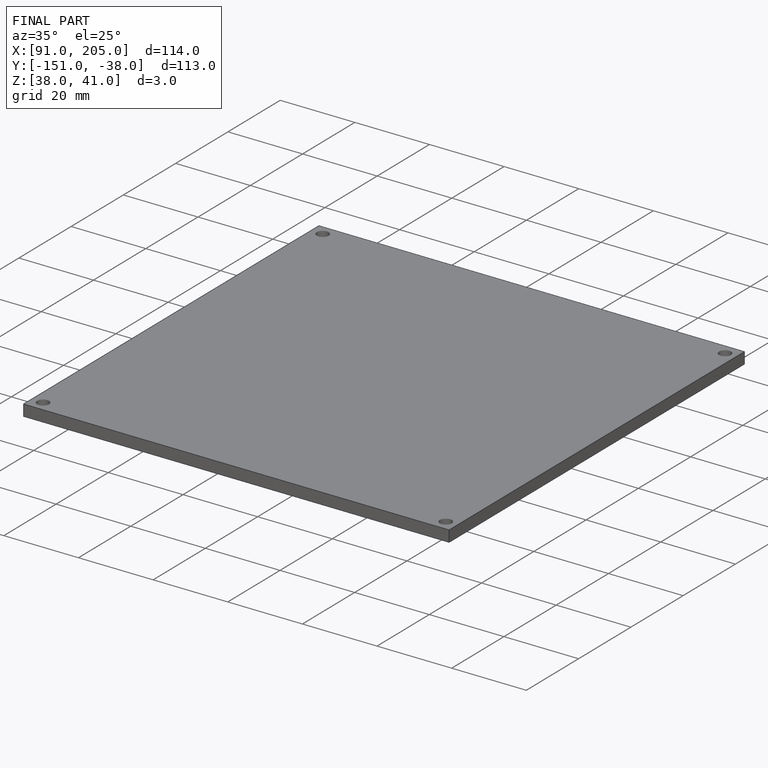
[diagram: finished part — iso view with bounding-box wireframe]
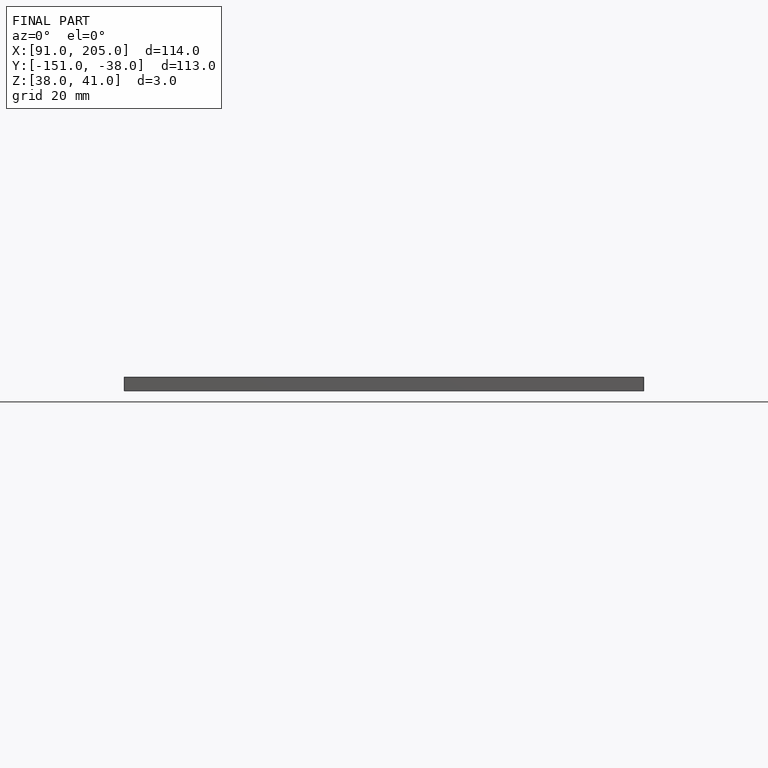
[diagram: finished part — front view with bounding-box wireframe]
